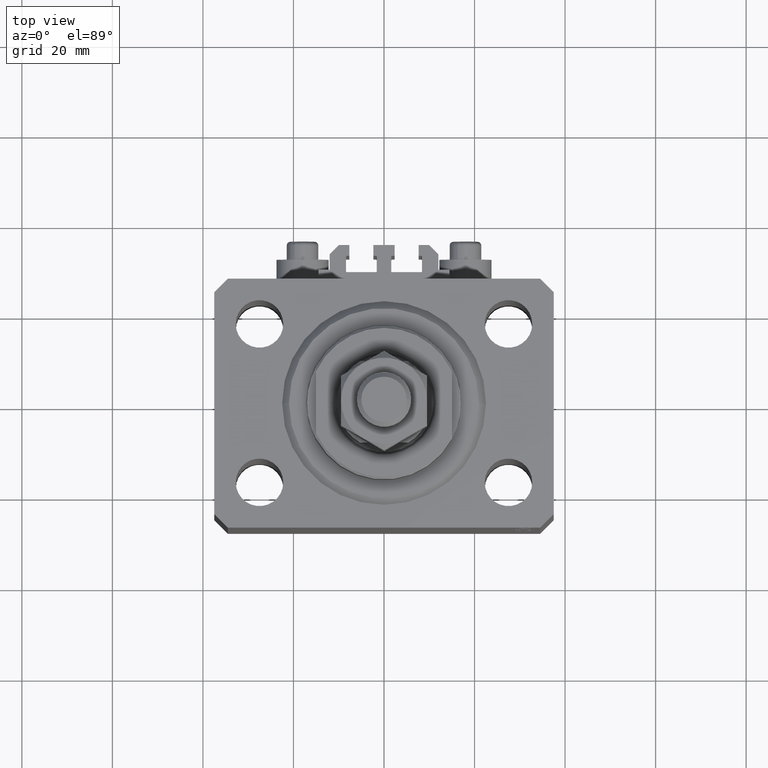
[diagram: clean part render]
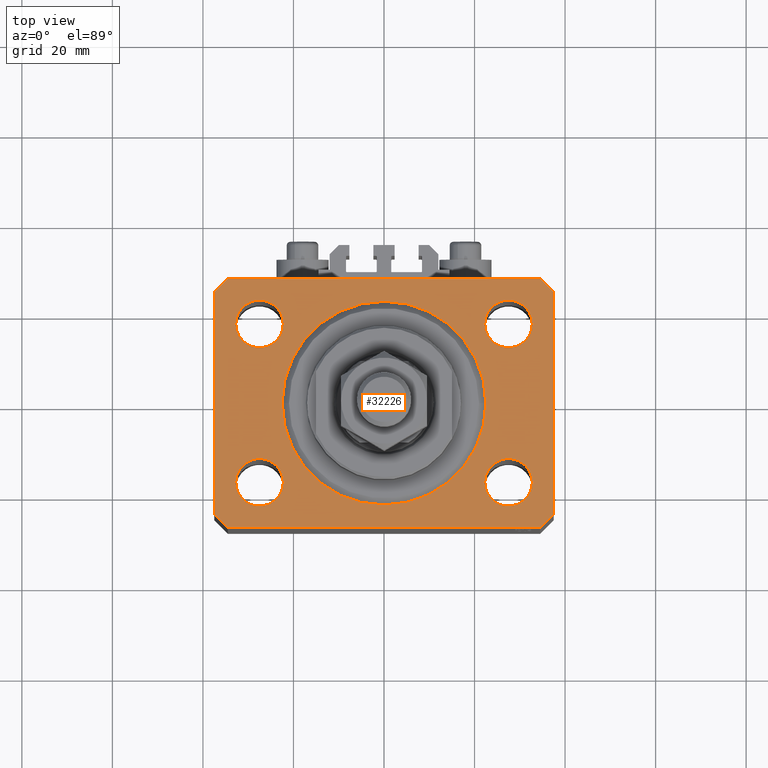
[diagram: same view with one face highlighted and labeled with its STEP entity id]
A machine part, top view. The second image highlights one B-rep face of the part: STEP entity #32226.
In plain terms, the highlighted planar face has unit normal (0, 0, 1).
Its self-contained STEP definition (entity closure, byte-faithful):
#51 = EDGE_CURVE ( 'NONE', #47206, #19067, #47437, .T. ) ;
#81 = CARTESIAN_POINT ( 'NONE',  ( -34.49999999999999289, 27.50000000000000000, 0.000000000000000000 ) ) ;
#123 = VERTEX_POINT ( 'NONE', #18141 ) ;
#314 = DIRECTION ( 'NONE',  ( -0.7071067811865471286, -0.7071067811865479058, 0.000000000000000000 ) ) ;
#409 = ORIENTED_EDGE ( 'NONE', *, *, #47986, .T. ) ;
#996 = VECTOR ( 'NONE', #3136, 1000.000000000000000 ) ;
#1193 = ORIENTED_EDGE ( 'NONE', *, *, #51, .F. ) ;
#1530 = DIRECTION ( 'NONE',  ( 0.000000000000000000, 0.000000000000000000, 1.000000000000000000 ) ) ;
#1640 = VERTEX_POINT ( 'NONE', #8583 ) ;
#1690 = DIRECTION ( 'NONE',  ( 1.000000000000000000, 0.000000000000000000, 0.000000000000000000 ) ) ;
#1984 = LINE ( 'NONE', #36713, #31469 ) ;
#2402 = DIRECTION ( 'NONE',  ( 0.000000000000000000, 0.000000000000000000, 1.000000000000000000 ) ) ;
#2406 = VERTEX_POINT ( 'NONE', #46238 ) ;
#2426 = DIRECTION ( 'NONE',  ( 0.000000000000000000, 0.000000000000000000, 1.000000000000000000 ) ) ;
#2933 = ORIENTED_EDGE ( 'NONE', *, *, #16532, .F. ) ;
#3135 = DIRECTION ( 'NONE',  ( 0.000000000000000000, 0.000000000000000000, 1.000000000000000000 ) ) ;
#3136 = DIRECTION ( 'NONE',  ( 1.076236605503979380E-14, 1.000000000000000000, 0.000000000000000000 ) ) ;
#4675 = AXIS2_PLACEMENT_3D ( 'NONE', #39739, #1530, #36014 ) ;
#5034 = EDGE_LOOP ( 'NONE', ( #41551, #32892, #28722, #44570, #409, #36206, #6908, #43337 ) ) ;
#5295 = DIRECTION ( 'NONE',  ( 0.000000000000000000, 0.000000000000000000, 1.000000000000000000 ) ) ;
#5398 = CARTESIAN_POINT ( 'NONE',  ( -32.74999999999999289, -17.50000000000000000, 0.000000000000000000 ) ) ;
#5500 = VERTEX_POINT ( 'NONE', #35085 ) ;
#5883 = CARTESIAN_POINT ( 'NONE',  ( 37.49999999999999289, -24.50000000000000000, 0.000000000000000000 ) ) ;
#6908 = ORIENTED_EDGE ( 'NONE', *, *, #47120, .T. ) ;
#7658 = CIRCLE ( 'NONE', #30655, 5.250000000000000888 ) ;
#8583 = CARTESIAN_POINT ( 'NONE',  ( 22.24999999999999289, -17.50000000000000000, 0.000000000000000000 ) ) ;
#9480 = EDGE_CURVE ( 'NONE', #22916, #123, #7658, .T. ) ;
#10174 = VERTEX_POINT ( 'NONE', #5398 ) ;
#10264 = FACE_BOUND ( 'NONE', #10817, .T. ) ;
#10357 = CARTESIAN_POINT ( 'NONE',  ( 27.50000000000000000, 17.49999999999999289, 0.000000000000000000 ) ) ;
#10817 = EDGE_LOOP ( 'NONE', ( #15029, #1193 ) ) ;
#11079 = CARTESIAN_POINT ( 'NONE',  ( 34.49999999999999289, -27.49999999999999645, 0.000000000000000000 ) ) ;
#11165 = ORIENTED_EDGE ( 'NONE', *, *, #9480, .F. ) ;
#12277 = CIRCLE ( 'NONE', #47105, 22.50000000000000355 ) ;
#12491 = DIRECTION ( 'NONE',  ( 1.000000000000000000, 0.000000000000000000, 0.000000000000000000 ) ) ;
#12600 = DIRECTION ( 'NONE',  ( -0.7071067811865364705, 0.7071067811865584529, 0.000000000000000000 ) ) ;
#12669 = CARTESIAN_POINT ( 'NONE',  ( 32.74999999999999289, -17.50000000000000000, 0.000000000000000000 ) ) ;
#13005 = FACE_BOUND ( 'NONE', #22567, .T. ) ;
#13130 = VERTEX_POINT ( 'NONE', #22367 ) ;
#13252 = DIRECTION ( 'NONE',  ( 1.000000000000000000, 0.000000000000000000, -0.000000000000000000 ) ) ;
#13366 = EDGE_CURVE ( 'NONE', #16902, #24704, #16525, .T. ) ;
#13668 = DIRECTION ( 'NONE',  ( 1.000000000000000000, 0.000000000000000000, 0.000000000000000000 ) ) ;
#13809 = CARTESIAN_POINT ( 'NONE',  ( 37.49999999999999289, -24.50000000000000000, 0.000000000000000000 ) ) ;
#14030 = EDGE_CURVE ( 'NONE', #19067, #47206, #43107, .T. ) ;
#14483 = EDGE_CURVE ( 'NONE', #2406, #35337, #12277, .T. ) ;
#14627 = CARTESIAN_POINT ( 'NONE',  ( 0.000000000000000000, 0.000000000000000000, 0.000000000000000000 ) ) ;
#15029 = ORIENTED_EDGE ( 'NONE', *, *, #14030, .F. ) ;
#15172 = EDGE_CURVE ( 'NONE', #10174, #5500, #30577, .T. ) ;
#15290 = EDGE_CURVE ( 'NONE', #47561, #44848, #37623, .T. ) ;
#15451 = LINE ( 'NONE', #81, #40867 ) ;
#15839 = ORIENTED_EDGE ( 'NONE', *, *, #14483, .F. ) ;
#16525 = LINE ( 'NONE', #20959, #41783 ) ;
#16532 = EDGE_CURVE ( 'NONE', #45314, #1640, #42439, .T. ) ;
#16732 = FACE_BOUND ( 'NONE', #21583, .T. ) ;
#16763 = DIRECTION ( 'NONE',  ( 1.000000000000000000, 0.000000000000000000, 0.000000000000000000 ) ) ;
#16902 = VERTEX_POINT ( 'NONE', #47622 ) ;
#17127 = DIRECTION ( 'NONE',  ( -1.000000000000000000, 0.000000000000000000, 0.000000000000000000 ) ) ;
#17457 = CARTESIAN_POINT ( 'NONE',  ( 0.000000000000000000, 0.000000000000000000, 0.000000000000000000 ) ) ;
#18032 = AXIS2_PLACEMENT_3D ( 'NONE', #40363, #3135, #28958 ) ;
#18141 = CARTESIAN_POINT ( 'NONE',  ( -22.25000000000000000, 17.49999999999999645, 0.000000000000000000 ) ) ;
#18286 = CARTESIAN_POINT ( 'NONE',  ( 22.50000000000000355, 0.000000000000000000, 0.000000000000000000 ) ) ;
#19067 = VERTEX_POINT ( 'NONE', #30195 ) ;
#19433 = VECTOR ( 'NONE', #27205, 1000.000000000000114 ) ;
#20286 = LINE ( 'NONE', #43090, #33096 ) ;
#20321 = ORIENTED_EDGE ( 'NONE', *, *, #23076, .F. ) ;
#20358 = AXIS2_PLACEMENT_3D ( 'NONE', #14627, #37215, #22317 ) ;
#20959 = CARTESIAN_POINT ( 'NONE',  ( -37.49999999999999289, -24.50000000000000000, 0.000000000000000000 ) ) ;
#21358 = CARTESIAN_POINT ( 'NONE',  ( -27.50000000000000000, 17.49999999999999645, 0.000000000000000000 ) ) ;
#21583 = EDGE_LOOP ( 'NONE', ( #20321, #28262 ) ) ;
#21741 = CARTESIAN_POINT ( 'NONE',  ( 22.25000000000000000, 17.49999999999999289, 0.000000000000000000 ) ) ;
#22317 = DIRECTION ( 'NONE',  ( 1.000000000000000000, 0.000000000000000000, 0.000000000000000000 ) ) ;
#22367 = CARTESIAN_POINT ( 'NONE',  ( 34.50000000000056843, 27.50000000000000000, 0.000000000000000000 ) ) ;
#22567 = EDGE_LOOP ( 'NONE', ( #34444, #15839 ) ) ;
#22916 = VERTEX_POINT ( 'NONE', #46359 ) ;
#23076 = EDGE_CURVE ( 'NONE', #5500, #10174, #23241, .T. ) ;
#23241 = CIRCLE ( 'NONE', #47795, 5.250000000000000888 ) ;
#23301 = CARTESIAN_POINT ( 'NONE',  ( -37.49999999999999289, 24.50000000000000000, 0.000000000000000000 ) ) ;
#23967 = CARTESIAN_POINT ( 'NONE',  ( -27.50000000000000000, 17.49999999999999645, 0.000000000000000000 ) ) ;
#24704 = VERTEX_POINT ( 'NONE', #43086 ) ;
#25332 = VERTEX_POINT ( 'NONE', #42680 ) ;
#25502 = DIRECTION ( 'NONE',  ( 0.000000000000000000, 0.000000000000000000, 1.000000000000000000 ) ) ;
#26338 = EDGE_CURVE ( 'NONE', #37299, #16902, #31499, .T. ) ;
#27205 = DIRECTION ( 'NONE',  ( 0.7071067811865474617, 0.7071067811865474617, 0.000000000000000000 ) ) ;
#27589 = CARTESIAN_POINT ( 'NONE',  ( 0.000000000000000000, 0.000000000000000000, 0.000000000000000000 ) ) ;
#28262 = ORIENTED_EDGE ( 'NONE', *, *, #15172, .F. ) ;
#28320 = DIRECTION ( 'NONE',  ( 0.000000000000000000, 0.000000000000000000, 1.000000000000000000 ) ) ;
#28722 = ORIENTED_EDGE ( 'NONE', *, *, #26338, .T. ) ;
#28943 = EDGE_CURVE ( 'NONE', #25332, #37299, #15451, .T. ) ;
#28958 = DIRECTION ( 'NONE',  ( 1.000000000000000000, 0.000000000000000000, 0.000000000000000000 ) ) ;
#28980 = VECTOR ( 'NONE', #32934, 1000.000000000000000 ) ;
#29666 = VECTOR ( 'NONE', #46602, 1000.000000000000000 ) ;
#30195 = CARTESIAN_POINT ( 'NONE',  ( 32.75000000000000000, 17.49999999999999289, 0.000000000000000000 ) ) ;
#30577 = CIRCLE ( 'NONE', #36892, 5.250000000000000888 ) ;
#30655 = AXIS2_PLACEMENT_3D ( 'NONE', #23967, #42815, #16763 ) ;
#31469 = VECTOR ( 'NONE', #17127, 1000.000000000000000 ) ;
#31499 = LINE ( 'NONE', #23301, #29666 ) ;
#32211 = LINE ( 'NONE', #43595, #28980 ) ;
#32226 = ADVANCED_FACE ( 'NONE', ( #13005, #16732, #43986, #10264, #39316, #47226 ), #47471, .T. ) ;
#32234 = DIRECTION ( 'NONE',  ( 1.000000000000000000, 0.000000000000000000, 0.000000000000000000 ) ) ;
#32614 = DIRECTION ( 'NONE',  ( 0.000000000000000000, 0.000000000000000000, 1.000000000000000000 ) ) ;
#32892 = ORIENTED_EDGE ( 'NONE', *, *, #28943, .T. ) ;
#32934 = DIRECTION ( 'NONE',  ( 1.000000000000000000, 0.000000000000000000, 0.000000000000000000 ) ) ;
#33096 = VECTOR ( 'NONE', #12600, 1000.000000000000114 ) ;
#33648 = AXIS2_PLACEMENT_3D ( 'NONE', #10357, #25502, #1690 ) ;
#34168 = EDGE_CURVE ( 'NONE', #43964, #13130, #20286, .T. ) ;
#34184 = EDGE_CURVE ( 'NONE', #1640, #45314, #39428, .T. ) ;
#34444 = ORIENTED_EDGE ( 'NONE', *, *, #36410, .F. ) ;
#35085 = CARTESIAN_POINT ( 'NONE',  ( -22.24999999999999289, -17.50000000000000000, 0.000000000000000000 ) ) ;
#35337 = VERTEX_POINT ( 'NONE', #18286 ) ;
#35939 = CARTESIAN_POINT ( 'NONE',  ( -27.49999999999999289, -17.50000000000000000, 0.000000000000000000 ) ) ;
#36014 = DIRECTION ( 'NONE',  ( 1.000000000000000000, 0.000000000000000000, 0.000000000000000000 ) ) ;
#36206 = ORIENTED_EDGE ( 'NONE', *, *, #15290, .T. ) ;
#36297 = EDGE_CURVE ( 'NONE', #13130, #25332, #1984, .T. ) ;
#36410 = EDGE_CURVE ( 'NONE', #35337, #2406, #41759, .T. ) ;
#36713 = CARTESIAN_POINT ( 'NONE',  ( 34.50000000000056843, 27.50000000000000000, 0.000000000000000000 ) ) ;
#36892 = AXIS2_PLACEMENT_3D ( 'NONE', #41097, #2402, #44805 ) ;
#37014 = AXIS2_PLACEMENT_3D ( 'NONE', #17457, #32614, #13252 ) ;
#37215 = DIRECTION ( 'NONE',  ( 0.000000000000000000, 0.000000000000000000, 1.000000000000000000 ) ) ;
#37299 = VERTEX_POINT ( 'NONE', #43671 ) ;
#37305 = ORIENTED_EDGE ( 'NONE', *, *, #38324, .F. ) ;
#37623 = LINE ( 'NONE', #11079, #19433 ) ;
#38324 = EDGE_CURVE ( 'NONE', #123, #22916, #48154, .T. ) ;
#38989 = DIRECTION ( 'NONE',  ( 1.000000000000000000, 0.000000000000000000, 0.000000000000000000 ) ) ;
#39243 = DIRECTION ( 'NONE',  ( 0.000000000000000000, 0.000000000000000000, 1.000000000000000000 ) ) ;
#39316 = FACE_BOUND ( 'NONE', #41684, .T. ) ;
#39428 = CIRCLE ( 'NONE', #18032, 5.250000000000000888 ) ;
#39739 = CARTESIAN_POINT ( 'NONE',  ( 27.50000000000000000, 17.49999999999999289, 0.000000000000000000 ) ) ;
#40363 = CARTESIAN_POINT ( 'NONE',  ( 27.49999999999999289, -17.50000000000000000, 0.000000000000000000 ) ) ;
#40867 = VECTOR ( 'NONE', #314, 1000.000000000000000 ) ;
#41097 = CARTESIAN_POINT ( 'NONE',  ( -27.49999999999999289, -17.50000000000000000, 0.000000000000000000 ) ) ;
#41551 = ORIENTED_EDGE ( 'NONE', *, *, #36297, .T. ) ;
#41684 = EDGE_LOOP ( 'NONE', ( #37305, #11165 ) ) ;
#41759 = CIRCLE ( 'NONE', #20358, 22.50000000000000355 ) ;
#41783 = VECTOR ( 'NONE', #47502, 1000.000000000000000 ) ;
#42439 = CIRCLE ( 'NONE', #48775, 5.250000000000000888 ) ;
#42528 = ORIENTED_EDGE ( 'NONE', *, *, #34184, .F. ) ;
#42680 = CARTESIAN_POINT ( 'NONE',  ( -34.49999999999999289, 27.50000000000000000, 0.000000000000000000 ) ) ;
#42815 = DIRECTION ( 'NONE',  ( 0.000000000000000000, 0.000000000000000000, 1.000000000000000000 ) ) ;
#43086 = CARTESIAN_POINT ( 'NONE',  ( -34.49999999999998579, -27.49999999999999645, 0.000000000000000000 ) ) ;
#43090 = CARTESIAN_POINT ( 'NONE',  ( 37.50000000000051870, 24.49999999999995381, 0.000000000000000000 ) ) ;
#43107 = CIRCLE ( 'NONE', #33648, 5.250000000000000888 ) ;
#43337 = ORIENTED_EDGE ( 'NONE', *, *, #34168, .T. ) ;
#43595 = CARTESIAN_POINT ( 'NONE',  ( -34.49999999999998579, -27.49999999999999645, 0.000000000000000000 ) ) ;
#43671 = CARTESIAN_POINT ( 'NONE',  ( -37.49999999999999289, 24.50000000000000000, 0.000000000000000000 ) ) ;
#43964 = VERTEX_POINT ( 'NONE', #48220 ) ;
#43986 = FACE_BOUND ( 'NONE', #48717, .T. ) ;
#44195 = AXIS2_PLACEMENT_3D ( 'NONE', #21358, #39243, #13668 ) ;
#44393 = CARTESIAN_POINT ( 'NONE',  ( 34.49999999999999289, -27.49999999999999645, 0.000000000000000000 ) ) ;
#44570 = ORIENTED_EDGE ( 'NONE', *, *, #13366, .T. ) ;
#44805 = DIRECTION ( 'NONE',  ( 1.000000000000000000, 0.000000000000000000, 0.000000000000000000 ) ) ;
#44848 = VERTEX_POINT ( 'NONE', #5883 ) ;
#45314 = VERTEX_POINT ( 'NONE', #12669 ) ;
#46226 = CARTESIAN_POINT ( 'NONE',  ( 27.49999999999999289, -17.50000000000000000, 0.000000000000000000 ) ) ;
#46238 = CARTESIAN_POINT ( 'NONE',  ( -22.50000000000000355, 2.755455298081545172E-15, 0.000000000000000000 ) ) ;
#46359 = CARTESIAN_POINT ( 'NONE',  ( -32.75000000000000000, 17.49999999999999645, 0.000000000000000000 ) ) ;
#46602 = DIRECTION ( 'NONE',  ( 0.000000000000000000, -1.000000000000000000, 0.000000000000000000 ) ) ;
#47105 = AXIS2_PLACEMENT_3D ( 'NONE', #27589, #28320, #38989 ) ;
#47120 = EDGE_CURVE ( 'NONE', #44848, #43964, #47784, .T. ) ;
#47206 = VERTEX_POINT ( 'NONE', #21741 ) ;
#47226 = FACE_OUTER_BOUND ( 'NONE', #5034, .T. ) ;
#47437 = CIRCLE ( 'NONE', #4675, 5.250000000000000888 ) ;
#47471 = PLANE ( 'NONE',  #37014 ) ;
#47502 = DIRECTION ( 'NONE',  ( 0.7071067811865483499, -0.7071067811865466846, 0.000000000000000000 ) ) ;
#47561 = VERTEX_POINT ( 'NONE', #44393 ) ;
#47622 = CARTESIAN_POINT ( 'NONE',  ( -37.49999999999999289, -24.50000000000000000, 0.000000000000000000 ) ) ;
#47784 = LINE ( 'NONE', #13809, #996 ) ;
#47795 = AXIS2_PLACEMENT_3D ( 'NONE', #35939, #2426, #32234 ) ;
#47986 = EDGE_CURVE ( 'NONE', #24704, #47561, #32211, .T. ) ;
#48154 = CIRCLE ( 'NONE', #44195, 5.250000000000000888 ) ;
#48220 = CARTESIAN_POINT ( 'NONE',  ( 37.50000000000051870, 24.49999999999995381, 0.000000000000000000 ) ) ;
#48717 = EDGE_LOOP ( 'NONE', ( #2933, #42528 ) ) ;
#48775 = AXIS2_PLACEMENT_3D ( 'NONE', #46226, #5295, #12491 ) ;